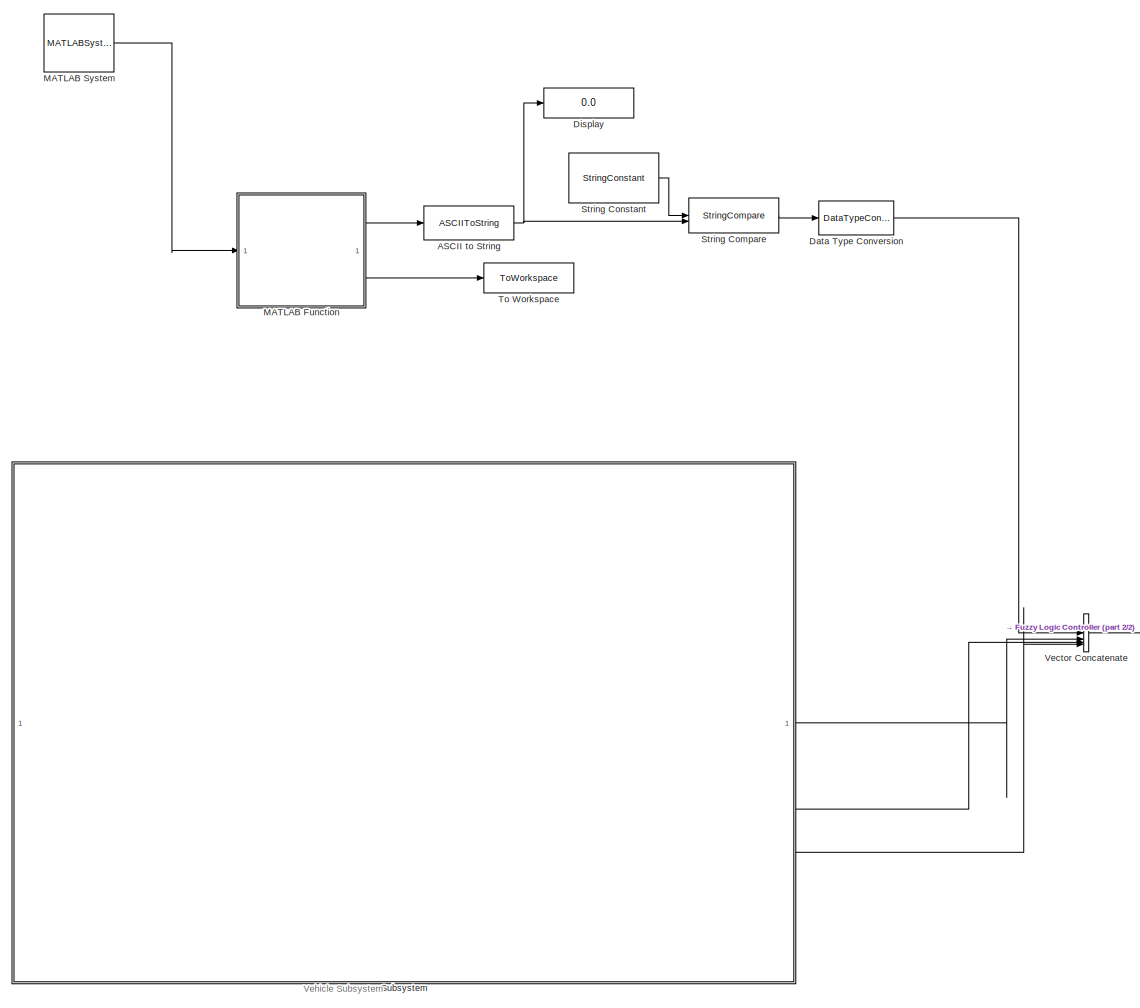
[diagram: root canvas - part 1/2, left side, full height]
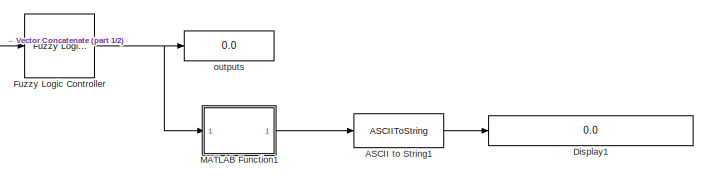
[diagram: root canvas - part 2/2, middle right region]
MODEL slx_30219617726c
KIND model
CONFIG AbsTol = auto
CONFIG EnableMultiTasking = off
CONFIG FixedStep = auto
CONFIG MaxStep = auto
CONFIG MinStep = auto
CONFIG RelTol = 1e-3
CONFIG SampleTimeConstraint = Unconstrained
CONFIG SolverName = VariableStepAuto
CONFIG StartTime = 0.0
CONFIG StopTime = 10.0
BLOCK [ASCIIToString] ASCII to String
BLOCK [ASCIIToString] ASCII to String1
BLOCK [DataTypeConversion] Data Type Conversion
  OutDataTypeStr = double
  RndMeth = Floor
  SaturateOnIntegerOverflow = off
BLOCK [Display] Display
  Decimation = 1
BLOCK [Display] Display1
  Decimation = 1
BLOCK [Reference] Fuzzy Logic Controller  REF=fuzblock/Fuzzy Logic   (lib defined in mdl_858b3b3e7478)
Controller
  SourceBlock = fuzblock/Fuzzy Logic \nController
  SourceType = Fuzzy Inference System
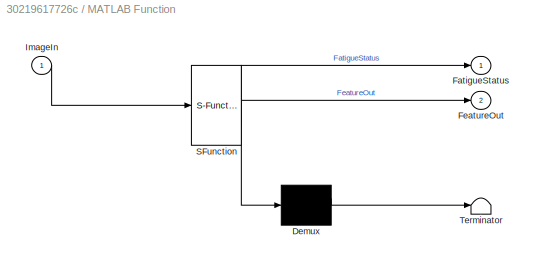
BLOCK [SubSystem] MATLAB Function
  ErrorFcn = Stateflow.Translate.translate
  PermitHierarchicalResolution = ExplicitOnly
  SFBlockType = MATLAB Function
  TreatAsAtomicUnit = on
BLOCK [Demux] MATLAB Function/ Demux 
  Outputs = 1
BLOCK [S-Function] MATLAB Function/ SFunction 
  EnableBusSupport = off
  FunctionName = sf_sfun
  PortCounts = [1 3]
  SFcnIsStateOwnerBlock = off
  SFunctionDeploymentMode = off
  Tag = Stateflow S-Function 2
BLOCK [Terminator] MATLAB Function/ Terminator 
BLOCK [Outport] MATLAB Function/FatigueStatus
BLOCK [Outport] MATLAB Function/FeatureOut
  Port = 2
BLOCK [Inport] MATLAB Function/ImageIn
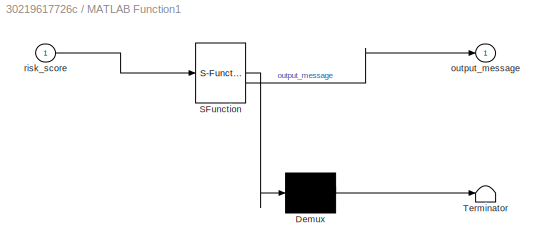
BLOCK [SubSystem] MATLAB Function1
  ErrorFcn = Stateflow.Translate.translate
  PermitHierarchicalResolution = ExplicitOnly
  SFBlockType = MATLAB Function
  TreatAsAtomicUnit = on
BLOCK [Demux] MATLAB Function1/ Demux 
  Outputs = 1
BLOCK [S-Function] MATLAB Function1/ SFunction 
  EnableBusSupport = off
  FunctionName = sf_sfun
  PortCounts = [1 2]
  SFcnIsStateOwnerBlock = off
  SFunctionDeploymentMode = off
  Tag = Stateflow S-Function 1
BLOCK [Terminator] MATLAB Function1/ Terminator 
BLOCK [Outport] MATLAB Function1/output_message
BLOCK [Inport] MATLAB Function1/risk_score
BLOCK [MATLABSystem] MATLAB System
  MaskType = WebcamSource
  SimulateUsing = Interpreted execution
  System = WebcamSource
BLOCK [StringCompare] String Compare
BLOCK [StringConstant] String Constant
  String = "Fatigue"
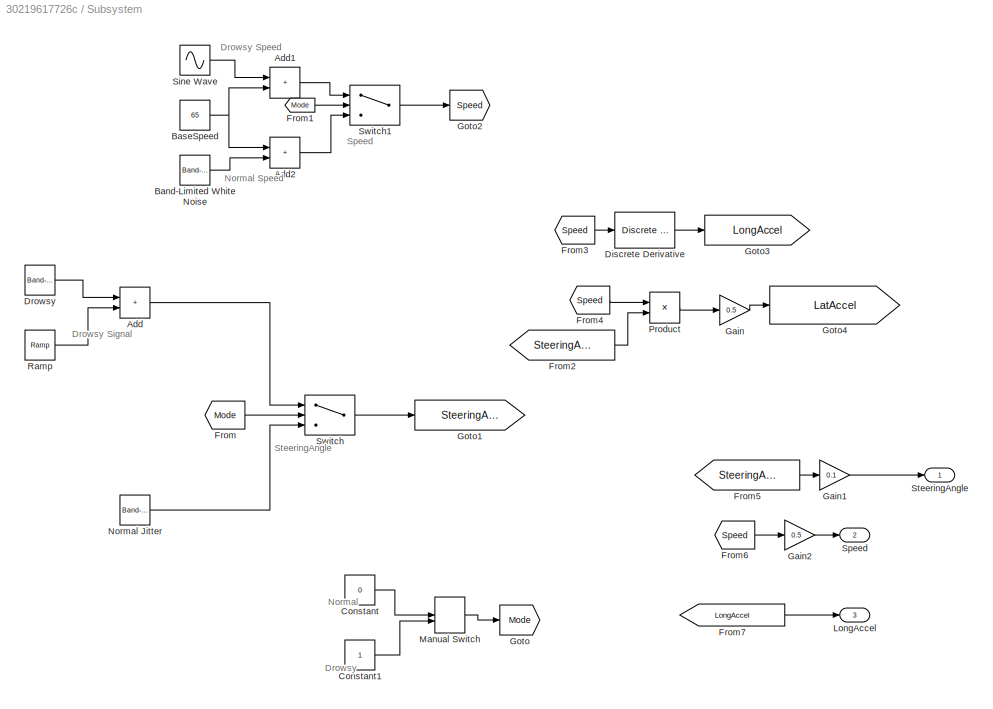
BLOCK [SubSystem] Subsystem
BLOCK [Sum] Subsystem/Add
  IconShape = rectangular
BLOCK [Sum] Subsystem/Add1
  IconShape = rectangular
BLOCK [Sum] Subsystem/Add2
  IconShape = rectangular
BLOCK [Reference] Subsystem/Band-Limited White Noise  REF=simulink/Sources/Band-Limited
White Noise
  SourceBlock = simulink/Sources/Band-Limited\nWhite Noise
  SourceType = Band-Limited White Noise.
BLOCK [Constant] Subsystem/BaseSpeed
  Value = 65
BLOCK [Constant] Subsystem/Constant
  Value = 0
BLOCK [Constant] Subsystem/Constant1
BLOCK [Reference] Subsystem/Discrete Derivative  REF=simulink/Discrete/Discrete Derivative
  SourceBlock = simulink/Discrete/Discrete Derivative
  SourceType = Discrete Derivative
BLOCK [Reference] Subsystem/Drowsy  REF=simulink/Sources/Band-Limited
White Noise
  SourceBlock = simulink/Sources/Band-Limited\nWhite Noise
  SourceType = Band-Limited White Noise.
BLOCK [From] Subsystem/From
  GotoTag = Mode
BLOCK [From] Subsystem/From1
  GotoTag = Mode
BLOCK [From] Subsystem/From2
  GotoTag = SteeringAngle
BLOCK [From] Subsystem/From3
  GotoTag = Speed
BLOCK [From] Subsystem/From4
  GotoTag = Speed
BLOCK [From] Subsystem/From5
  GotoTag = SteeringAngle
BLOCK [From] Subsystem/From6
  GotoTag = Speed
BLOCK [From] Subsystem/From7
  GotoTag = LongAccel
BLOCK [Gain] Subsystem/Gain
  Gain = 0.5
BLOCK [Gain] Subsystem/Gain1
  Gain = 0.1
BLOCK [Gain] Subsystem/Gain2
  Gain = 0.5
BLOCK [Goto] Subsystem/Goto
  GotoTag = Mode
BLOCK [Goto] Subsystem/Goto1
  GotoTag = SteeringAngle
BLOCK [Goto] Subsystem/Goto2
  GotoTag = Speed
BLOCK [Goto] Subsystem/Goto3
  GotoTag = LongAccel
BLOCK [Goto] Subsystem/Goto4
  GotoTag = LatAccel
BLOCK [Outport] Subsystem/LongAccel
  Port = 3
BLOCK [ManualSwitch] Subsystem/Manual Switch
  CurrentSetting = 0
BLOCK [Reference] Subsystem/Normal Jitter  REF=simulink/Sources/Band-Limited
White Noise
  SourceBlock = simulink/Sources/Band-Limited\nWhite Noise
  SourceType = Band-Limited White Noise.
BLOCK [Product] Subsystem/Product
BLOCK [Reference] Subsystem/Ramp  REF=simulink/Sources/Ramp
  SourceBlock = simulink/Sources/Ramp
  SourceType = Ramp
BLOCK [Sin] Subsystem/Sine Wave
  Amplitude = 8
  Frequency = 0.05
  SampleTime = 0.01
BLOCK [Outport] Subsystem/Speed
  Port = 2
BLOCK [Outport] Subsystem/SteeringAngle
BLOCK [Switch] Subsystem/Switch
  Criteria = u2 > Threshold
  InputSameDT = off
  SaturateOnIntegerOverflow = off
  Threshold = 0.5
BLOCK [Switch] Subsystem/Switch1
  Criteria = u2 > Threshold
  InputSameDT = off
  SaturateOnIntegerOverflow = off
  Threshold = 0.5
BLOCK [ToWorkspace] To Workspace
  FixptAsFi = on
  MaxDataPoints = inf
  SampleTime = -1
  SaveFormat = Timeseries
  VariableName = simout
BLOCK [Concatenate] Vector Concatenate
  NumInputs = 4
BLOCK [Display] outputs
  Decimation = 1
ANNOTATION (root): Vehicle Subsystem
ANNOTATION Subsystem: Drowsy
ANNOTATION Subsystem: Drowsy Signal
ANNOTATION Subsystem: Drowsy Speed
ANNOTATION Subsystem: Normal
ANNOTATION Subsystem: Normal Speed
ANNOTATION Subsystem: Speed
ANNOTATION Subsystem: SteeringAngle
LINE ASCII to String1:1 -> Display1:1
NET ASCII to String:1 -> Display:1, String Compare:2
LINE Data Type Conversion:1 -> Vector Concatenate:1
NET Fuzzy Logic Controller:1 -> MATLAB Function1:1, outputs:1
LINE MATLAB Function1:1 -> ASCII to String1:1
LINE MATLAB Function:1 -> ASCII to String:1
LINE MATLAB Function:2 -> To Workspace:1
LINE MATLAB System:1 -> MATLAB Function:1
LINE String Compare:1 -> Data Type Conversion:1
LINE String Constant:1 -> String Compare:1
LINE Subsystem/Add1:1 -> Subsystem/Switch1:1
LINE Subsystem/Add2:1 -> Subsystem/Switch1:3
LINE Subsystem/Add:1 -> Subsystem/Switch:1
LINE Subsystem/Band-Limited White Noise:1 -> Subsystem/Add2:2
NET Subsystem/BaseSpeed:1 -> Subsystem/Add1:2, Subsystem/Add2:1
LINE Subsystem/Constant1:1 -> Subsystem/Manual Switch:2
LINE Subsystem/Constant:1 -> Subsystem/Manual Switch:1
LINE Subsystem/Discrete Derivative:1 -> Subsystem/Goto3:1
LINE Subsystem/Drowsy:1 -> Subsystem/Add:1
LINE Subsystem/From1:1 -> Subsystem/Switch1:2
LINE Subsystem/From2:1 -> Subsystem/Product:2
LINE Subsystem/From3:1 -> Subsystem/Discrete Derivative:1
LINE Subsystem/From4:1 -> Subsystem/Product:1
LINE Subsystem/From5:1 -> Subsystem/Gain1:1
LINE Subsystem/From6:1 -> Subsystem/Gain2:1
LINE Subsystem/From7:1 -> Subsystem/LongAccel:1
LINE Subsystem/From:1 -> Subsystem/Switch:2
LINE Subsystem/Gain1:1 -> Subsystem/SteeringAngle:1
LINE Subsystem/Gain2:1 -> Subsystem/Speed:1
LINE Subsystem/Gain:1 -> Subsystem/Goto4:1
LINE Subsystem/Manual Switch:1 -> Subsystem/Goto:1
LINE Subsystem/Normal Jitter:1 -> Subsystem/Switch:3
LINE Subsystem/Product:1 -> Subsystem/Gain:1
LINE Subsystem/Ramp:1 -> Subsystem/Add:2
LINE Subsystem/Sine Wave:1 -> Subsystem/Add1:1
LINE Subsystem/Switch1:1 -> Subsystem/Goto2:1
LINE Subsystem/Switch:1 -> Subsystem/Goto1:1
LINE Subsystem:1 -> Vector Concatenate:2
LINE Subsystem:2 -> Vector Concatenate:3
LINE Subsystem:3 -> Vector Concatenate:4
LINE Vector Concatenate:1 -> Fuzzy Logic Controller:1
note: NET lines group one-source signal fan-out (src -> all destinations, sorted); 1:1 wires keep LINE
CHART MATLAB Function1 states=1 transitions=1
  STATE_LABEL 'eML_blk_kernel()'
  STATE_LABEL "SCRIPT:\nfunction output_message = textual_decision_wrapper(risk_score)\n    % Define the external function (required for code generation)\n    coder.extrinsic('textual_decision');\n\n    % Pre-allocate output size (MANDATORY: must match the size in textual_decision.m)\n    output_message = zeros(1, 30, 'uint8');\n\n    % Call the external function\n    output_message = textual_decision(risk_score);\nend"
CHART MATLAB Function states=1 transitions=1
  STATE_LABEL 'eML_blk_kernel()'
  STATE_LABEL "SCRIPT:\nfunction [FatigueStatus, FeatureOut] = drowsiness_monitor_wrapper(ImageIn)\n% Define the external function\ncoder.extrinsic('detect_drowsiness_extrinsic');\n\n% Pre-allocate outputs for Code Generation (MANDATORY)\nFatigueStatus = zeros(1, 20, 'uint8');\nFeatureOut = zeros(1, 4);\n\n% Call the external function (runs in standard MATLAB)\n[FatigueStatus, FeatureOut] = detect_drowsiness_extrinsic(Ima...<+11ch>"
CHART  states=0 transitions=0
CHART  states=0 transitions=0
